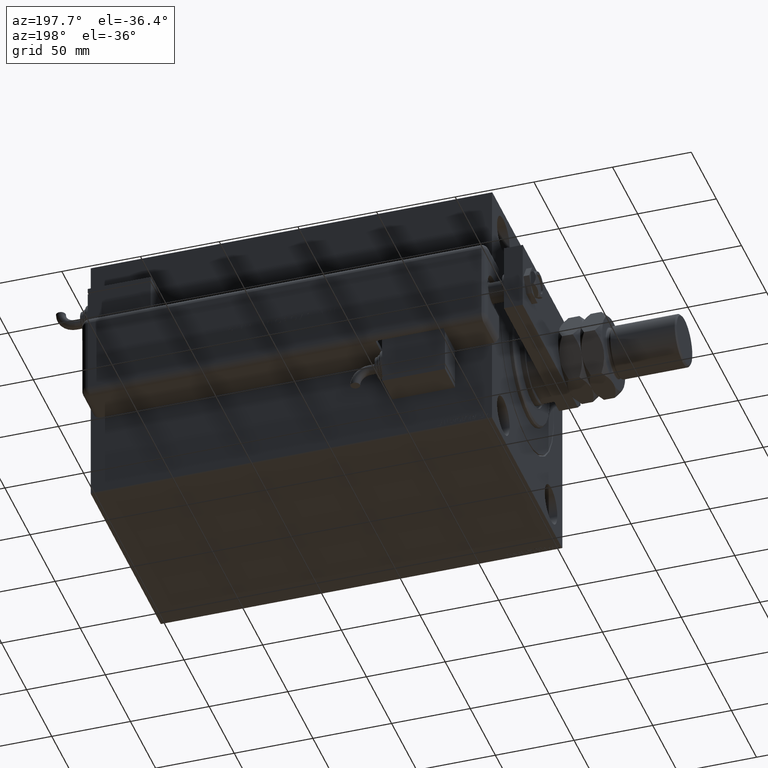
[diagram: clean part render]
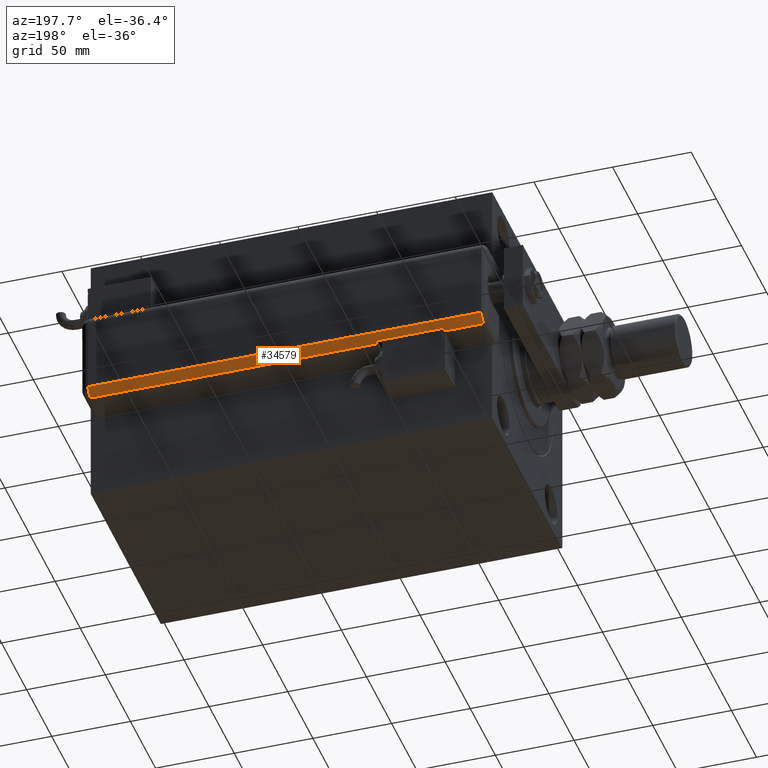
[diagram: same view with one face highlighted and labeled with its STEP entity id]
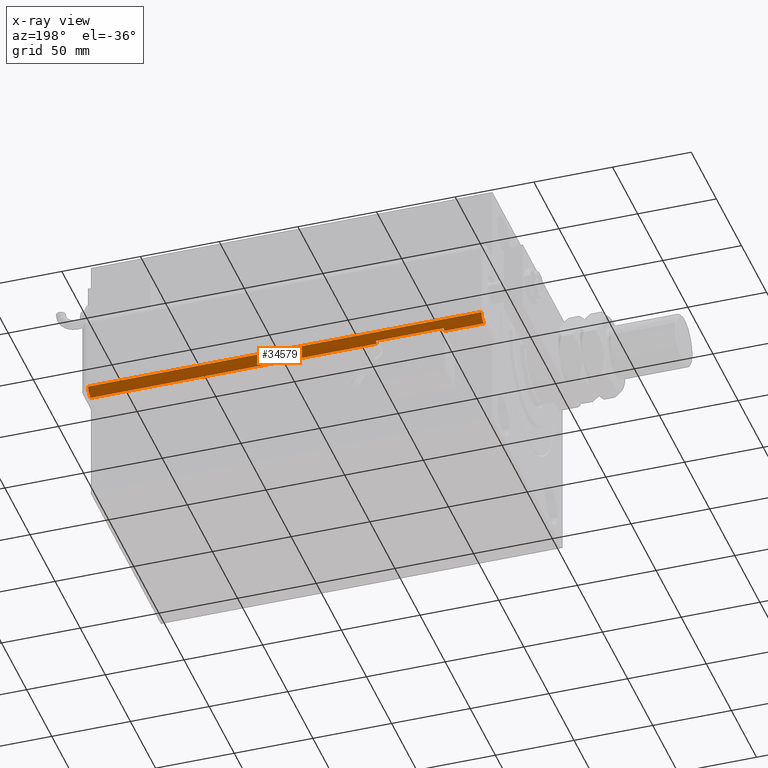
[diagram: x-ray of the same camera — body ghosted, the highlighted face saturated]
A machine part, auxiliary view. The second image highlights one B-rep face of the part: STEP entity #34579.
The next image is the same camera in x-ray: the body ghosted, the highlighted face saturated — about 0% of this face is hidden behind the body in this view.
In plain terms, the highlighted cylindrical surface (edge-blend (fillet) strip) has radius 5 mm, axis along (1, -0, -0).
Its self-contained STEP definition (entity closure, byte-faithful):
#837 = EDGE_CURVE ( 'NONE', #39688, #22623, #9310, .T. ) ;
#3321 = DIRECTION ( 'NONE',  ( -1.000000000000000000, 4.163336342344336238E-15, 0.000000000000000000 ) ) ;
#3689 = DIRECTION ( 'NONE',  ( 0.000000000000000000, 0.000000000000000000, -1.000000000000000000 ) ) ;
#5954 = LINE ( 'NONE', #48887, #37426 ) ;
#6235 = EDGE_LOOP ( 'NONE', ( #59016, #29489, #6445, #46811, #53872, #16807, #48349, #21540 ) ) ;
#6445 = ORIENTED_EDGE ( 'NONE', *, *, #48003, .F. ) ;
#7337 = AXIS2_PLACEMENT_3D ( 'NONE', #46355, #23615, #60971 ) ;
#7896 = VERTEX_POINT ( 'NONE', #14440 ) ;
#8352 = EDGE_CURVE ( 'NONE', #39688, #21257, #5954, .T. ) ;
#9201 = DIRECTION ( 'NONE',  ( -1.000000000000000000, 0.000000000000000000, 0.000000000000000000 ) ) ;
#9310 = CIRCLE ( 'NONE', #7337, 5.000000000000000888 ) ;
#9715 = DIRECTION ( 'NONE',  ( -0.000000000000000000, -0.000000000000000000, 1.000000000000000000 ) ) ;
#9913 = EDGE_CURVE ( 'NONE', #21257, #30731, #22550, .T. ) ;
#10325 = CARTESIAN_POINT ( 'NONE',  ( -23.99999999999999645, 20.79999999999998295, 255.0000000000000000 ) ) ;
#11056 = DIRECTION ( 'NONE',  ( 0.000000000000000000, 0.000000000000000000, -1.000000000000000000 ) ) ;
#11208 = DIRECTION ( 'NONE',  ( -0.000000000000000000, -0.000000000000000000, 1.000000000000000000 ) ) ;
#12971 = VERTEX_POINT ( 'NONE', #41850 ) ;
#14392 = AXIS2_PLACEMENT_3D ( 'NONE', #23207, #51845, #9201 ) ;
#14440 = CARTESIAN_POINT ( 'NONE',  ( -28.48998886412872267, 22.99999999999998934, 187.0000000000000000 ) ) ;
#15908 = VERTEX_POINT ( 'NONE', #33909 ) ;
#16807 = ORIENTED_EDGE ( 'NONE', *, *, #8352, .F. ) ;
#18420 = CARTESIAN_POINT ( 'NONE',  ( -28.99999999999999645, 20.79999999999998295, 5.000000000000004441 ) ) ;
#19520 = DIRECTION ( 'NONE',  ( 1.000000000000000000, 0.000000000000000000, 0.000000000000000000 ) ) ;
#21257 = VERTEX_POINT ( 'NONE', #55243 ) ;
#21357 = CARTESIAN_POINT ( 'NONE',  ( -28.48998886412872267, 22.99999999999998934, 255.0000000000000000 ) ) ;
#21540 = ORIENTED_EDGE ( 'NONE', *, *, #51043, .F. ) ;
#21947 = CARTESIAN_POINT ( 'NONE',  ( -28.99999999999999645, 20.79999999999998295, 230.0000000000000000 ) ) ;
#22024 = AXIS2_PLACEMENT_3D ( 'NONE', #34452, #24179, #19520 ) ;
#22506 = CIRCLE ( 'NONE', #40398, 5.000000000000000888 ) ;
#22550 = CIRCLE ( 'NONE', #46419, 5.000000000000000888 ) ;
#22623 = VERTEX_POINT ( 'NONE', #18420 ) ;
#23207 = CARTESIAN_POINT ( 'NONE',  ( -23.99999999999999645, 20.79999999999998295, 255.0000000000000000 ) ) ;
#23615 = DIRECTION ( 'NONE',  ( -0.000000000000000000, -0.000000000000000000, 1.000000000000000000 ) ) ;
#24179 = DIRECTION ( 'NONE',  ( 0.000000000000000000, -0.000000000000000000, -1.000000000000000000 ) ) ;
#25128 = DIRECTION ( 'NONE',  ( 0.000000000000000000, 0.000000000000000000, -1.000000000000000000 ) ) ;
#25155 = VERTEX_POINT ( 'NONE', #21947 ) ;
#29489 = ORIENTED_EDGE ( 'NONE', *, *, #34331, .F. ) ;
#30731 = VERTEX_POINT ( 'NONE', #38130 ) ;
#31960 = EDGE_CURVE ( 'NONE', #30731, #25155, #47547, .T. ) ;
#33909 = CARTESIAN_POINT ( 'NONE',  ( -28.48998886412872267, 22.99999999999998934, 230.0000000000000000 ) ) ;
#34331 = EDGE_CURVE ( 'NONE', #15908, #7896, #54079, .T. ) ;
#34452 = CARTESIAN_POINT ( 'NONE',  ( -23.99999999999999645, 20.79999999999998295, 230.0000000000000000 ) ) ;
#34579 = ADVANCED_FACE ( 'NONE', ( #50625 ), #41598, .T. ) ;
#36627 = DIRECTION ( 'NONE',  ( -0.000000000000000000, -0.000000000000000000, 1.000000000000000000 ) ) ;
#37426 = VECTOR ( 'NONE', #11208, 1000.000000000000000 ) ;
#38026 = DIRECTION ( 'NONE',  ( -1.000000000000000000, 0.000000000000000000, 0.000000000000000000 ) ) ;
#38130 = CARTESIAN_POINT ( 'NONE',  ( -28.99999999999999645, 20.79999999999998295, 255.0000000000000000 ) ) ;
#39688 = VERTEX_POINT ( 'NONE', #51287 ) ;
#40398 = AXIS2_PLACEMENT_3D ( 'NONE', #41290, #36627, #3321 ) ;
#41290 = CARTESIAN_POINT ( 'NONE',  ( -23.99999999999999645, 20.79999999999998295, 187.0000000000000000 ) ) ;
#41598 = CYLINDRICAL_SURFACE ( 'NONE', #14392, 5.000000000000000888 ) ;
#41850 = CARTESIAN_POINT ( 'NONE',  ( -28.99999999999999645, 20.79999999999998295, 187.0000000000000000 ) ) ;
#43595 = EDGE_CURVE ( 'NONE', #7896, #12971, #22506, .T. ) ;
#46318 = CARTESIAN_POINT ( 'NONE',  ( -28.99999999999999645, 20.79999999999998295, 255.0000000000000000 ) ) ;
#46355 = CARTESIAN_POINT ( 'NONE',  ( -23.99999999999999645, 20.79999999999998295, 5.000000000000004441 ) ) ;
#46419 = AXIS2_PLACEMENT_3D ( 'NONE', #10325, #9715, #38026 ) ;
#46811 = ORIENTED_EDGE ( 'NONE', *, *, #31960, .F. ) ;
#47001 = CIRCLE ( 'NONE', #22024, 5.000000000000000888 ) ;
#47547 = LINE ( 'NONE', #46318, #54029 ) ;
#48003 = EDGE_CURVE ( 'NONE', #25155, #15908, #47001, .T. ) ;
#48349 = ORIENTED_EDGE ( 'NONE', *, *, #837, .T. ) ;
#48887 = CARTESIAN_POINT ( 'NONE',  ( -23.99999999999999645, 25.79999999999998295, 255.0000000000000000 ) ) ;
#49340 = CARTESIAN_POINT ( 'NONE',  ( -28.99999999999999645, 20.79999999999998295, 255.0000000000000000 ) ) ;
#50625 = FACE_OUTER_BOUND ( 'NONE', #6235, .T. ) ;
#51043 = EDGE_CURVE ( 'NONE', #12971, #22623, #57773, .T. ) ;
#51287 = CARTESIAN_POINT ( 'NONE',  ( -23.99999999999999645, 25.79999999999998295, 5.000000000000004441 ) ) ;
#51845 = DIRECTION ( 'NONE',  ( 0.000000000000000000, 0.000000000000000000, -1.000000000000000000 ) ) ;
#52963 = VECTOR ( 'NONE', #11056, 1000.000000000000000 ) ;
#53872 = ORIENTED_EDGE ( 'NONE', *, *, #9913, .F. ) ;
#54029 = VECTOR ( 'NONE', #3689, 1000.000000000000000 ) ;
#54079 = LINE ( 'NONE', #21357, #58116 ) ;
#55243 = CARTESIAN_POINT ( 'NONE',  ( -23.99999999999999645, 25.79999999999998295, 255.0000000000000000 ) ) ;
#57773 = LINE ( 'NONE', #49340, #52963 ) ;
#58116 = VECTOR ( 'NONE', #25128, 1000.000000000000000 ) ;
#59016 = ORIENTED_EDGE ( 'NONE', *, *, #43595, .F. ) ;
#60971 = DIRECTION ( 'NONE',  ( -1.000000000000000000, 0.000000000000000000, 0.000000000000000000 ) ) ;